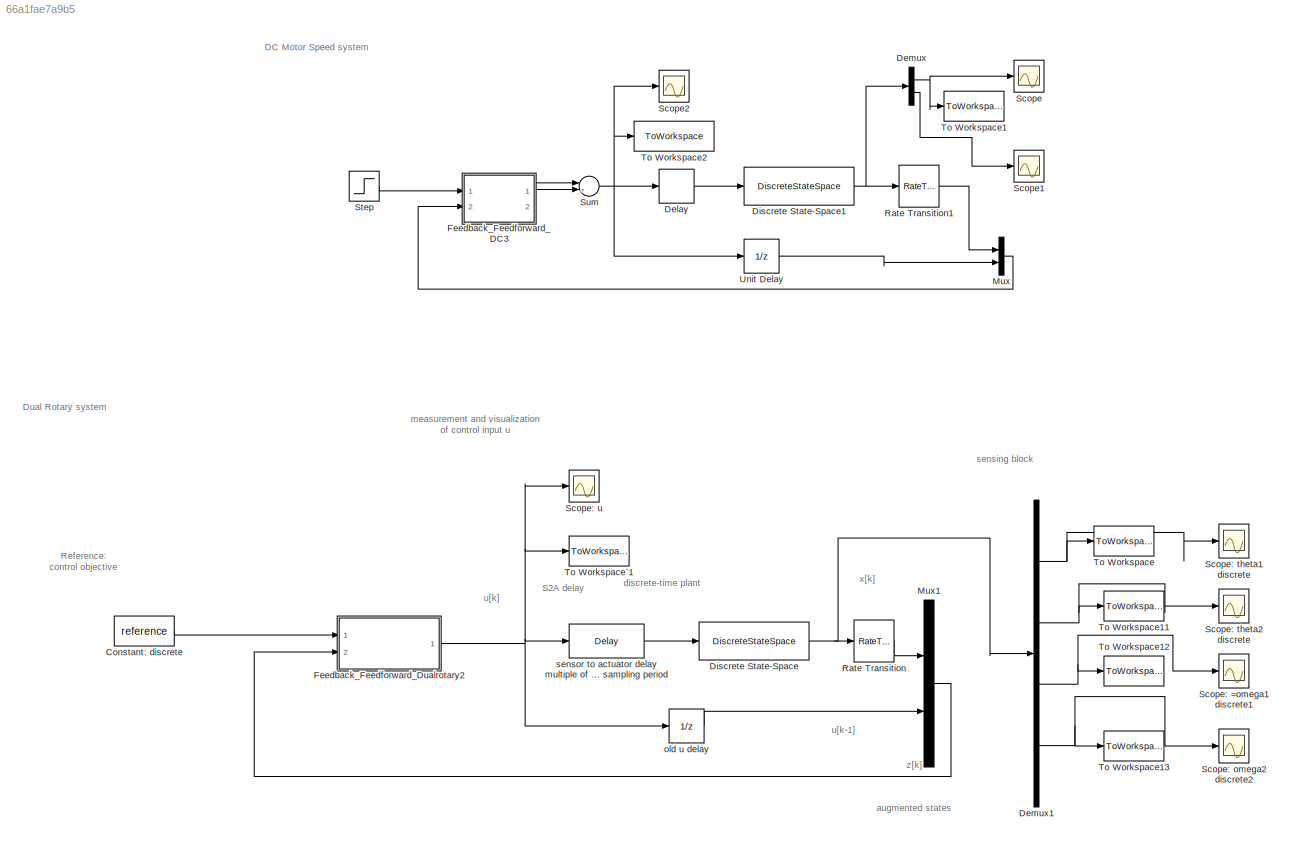
MODEL slx_66a1fae7a9b5
KIND model
CONFIG AbsTol = auto
CONFIG EnableMultiTasking = off
CONFIG FixedStep = 0.0001
CONFIG MaxStep = auto
CONFIG MinStep = auto
CONFIG RelTol = 1e-3
CONFIG SampleTimeConstraint = Unconstrained
CONFIG SolverName = FixedStepAuto
CONFIG StartTime = 0.0
CONFIG StopTime = 5
BLOCK [Constant] Constant: discrete
  Commented = on
  OutDataTypeStr = single
  SampleTime = hc
  Value = reference
BLOCK [Delay] Delay
  DelayLength = delay_count_dcmotor
  InputPortMap = u0
  Ports = [1, 1]
  SampleTime = Tp_DC
BLOCK [Demux] Demux
  Outputs = 2
  Ports = [1, 2]
BLOCK [Demux] Demux1
  Commented = on
  Ports = [1, 4]
BLOCK [DiscreteStateSpace] Discrete State-Space
  A = Ad_plant
  B = Bd_plant
  C = Cd_plant
  Commented = on
  D = Dd_plant
  SampleTime = hp
BLOCK [DiscreteStateSpace] Discrete State-Space1
  A = A_dp
  B = B_dp
  C = C_dp
  D = D_dp
  SampleTime = Tp_DC
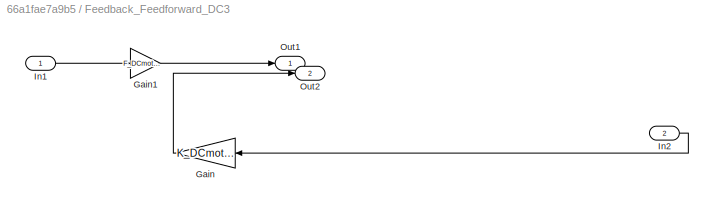
BLOCK [SubSystem] Feedback_Feedforward_DC3
  Ports = [2, 2]
  RequestExecContextInheritance = off
BLOCK [Gain] Feedback_Feedforward_DC3/Gain
  Gain = K_DCmotor
  Multiplication = Matrix(K*u) (u vector)
  NameLocation = top
BLOCK [Gain] Feedback_Feedforward_DC3/Gain1
  Gain = F_DCmotor
BLOCK [Inport] Feedback_Feedforward_DC3/In1
BLOCK [Inport] Feedback_Feedforward_DC3/In2
  Port = 2
BLOCK [Outport] Feedback_Feedforward_DC3/Out1
  VectorParamsAs1DForOutWhenUnconnected = off
BLOCK [Outport] Feedback_Feedforward_DC3/Out2
  Port = 2
  VectorParamsAs1DForOutWhenUnconnected = off
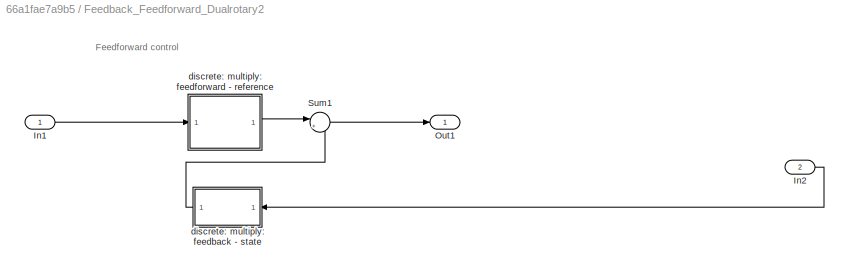
BLOCK [SubSystem] Feedback_Feedforward_Dualrotary2
  Commented = on
  Ports = [2, 1]
  RequestExecContextInheritance = off
BLOCK [Inport] Feedback_Feedforward_Dualrotary2/In1
BLOCK [Inport] Feedback_Feedforward_Dualrotary2/In2
  Port = 2
BLOCK [Outport] Feedback_Feedforward_Dualrotary2/Out1
  VectorParamsAs1DForOutWhenUnconnected = off
BLOCK [Sum] Feedback_Feedforward_Dualrotary2/Sum1
  Inputs = |++
  Ports = [2, 1]
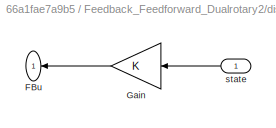
BLOCK [SubSystem] Feedback_Feedforward_Dualrotary2/discrete: multiply: feedback - state
  Ports = [1, 1]
  RequestExecContextInheritance = off
BLOCK [Outport] Feedback_Feedforward_Dualrotary2/discrete: multiply: feedback - state/FBu
  InitialOutput = [0]
  NameLocation = top
  OutDataTypeStr = single
  SampleTime = hc
  VectorParamsAs1DForOutWhenUnconnected = off
BLOCK [Gain] Feedback_Feedforward_Dualrotary2/discrete: multiply: feedback - state/Gain
  Gain = K
  Multiplication = Matrix(K*u) (u vector)
  NameLocation = top
  OutDataTypeStr = single
BLOCK [Inport] Feedback_Feedforward_Dualrotary2/discrete: multiply: feedback - state/state
  NameLocation = top
  OutDataTypeStr = single
  SampleTime = hc
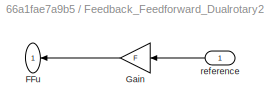
BLOCK [SubSystem] Feedback_Feedforward_Dualrotary2/discrete: multiply: feedforward - reference
  NameLocation = top
  Ports = [1, 1]
  RequestExecContextInheritance = off
BLOCK [Outport] Feedback_Feedforward_Dualrotary2/discrete: multiply: feedforward - reference/FFu
  InitialOutput = [0]
  NameLocation = top
  OutDataTypeStr = single
  SampleTime = hc
  VectorParamsAs1DForOutWhenUnconnected = off
BLOCK [Gain] Feedback_Feedforward_Dualrotary2/discrete: multiply: feedforward - reference/Gain
  Gain = F
  NameLocation = top
  OutDataTypeStr = single
BLOCK [Inport] Feedback_Feedforward_Dualrotary2/discrete: multiply: feedforward - reference/reference
  NameLocation = top
  OutDataTypeStr = single
  SampleTime = hc
BLOCK [Mux] Mux
  DisplayOption = bar
  Inputs = 2
  Ports = [2, 1]
BLOCK [Mux] Mux1
  Commented = on
  DisplayOption = bar
  Inputs = 2
  Ports = [2, 1]
BLOCK [RateTransition] Rate Transition
  Commented = on
  Deterministic = off
  OutPortSampleTime = hc
BLOCK [RateTransition] Rate Transition1
  OutPortSampleTime = Ts_DC
BLOCK [Scope] Scope
  Floating = off
  NumInputPorts = 1
  Ports = [1]
  ScopeSpecificationString = Simulink.scopes.TimeScopeBlockCfg('CurrentConfiguration', extmgr.ConfigurationSet(extmgr.Configuration('Core','General UI',true),extmgr.Configuration('Core','Source UI',true),extmgr.Configuration('Sources','WiredSimulink',true,'DataLoggingVariableName','ScopeData1'),extmgr.Configuration('Visuals','Time Domain',true,'SerializedDisplays',{struct('MinYLimReal','-0.1256','MaxYLimReal','1.13036','YLabe...<+1403ch>
BLOCK [Scope] Scope1
  Floating = off
  NumInputPorts = 1
  Ports = [1]
  ScopeSpecificationString = Simulink.scopes.TimeScopeBlockCfg('CurrentConfiguration', extmgr.ConfigurationSet(extmgr.Configuration('Core','General UI',true),extmgr.Configuration('Core','Source UI',true),extmgr.Configuration('Sources','WiredSimulink',true,'DataLoggingVariableName','ScopeData2'),extmgr.Configuration('Visuals','Time Domain',true,'SerializedDisplays',{struct('MinYLimReal','-1.24815','MaxYLimReal','11.23335','YLa...<+1370ch>
BLOCK [Scope] Scope2
  Floating = off
  NumInputPorts = 1
  Ports = [1]
  ScopeSpecificationString = Simulink.scopes.TimeScopeBlockCfg('CurrentConfiguration', extmgr.ConfigurationSet(extmgr.Configuration('Core','General UI',true),extmgr.Configuration('Core','Source UI',true),extmgr.Configuration('Sources','WiredSimulink',true,'DataLoggingVariableName','ScopeData3'),extmgr.Configuration('Visuals','Time Domain',true,'SerializedDisplays',{struct('MinYLimReal','-1.17312','MaxYLimReal','13.11865','YLa...<+1366ch>
BLOCK [Scope] Scope: =omega1 discrete1
  Commented = on
  Floating = off
  NumInputPorts = 1
  Ports = [1]
  ScopeSpecificationString = Simulink.scopes.TimeScopeBlockCfg('CurrentConfiguration', extmgr.ConfigurationSet(extmgr.Configuration('Core','General UI',true),extmgr.Configuration('Core','Source UI',true),extmgr.Configuration('Sources','WiredSimulink',true,'DataLoggingSaveFormat','Array','DataLoggingDecimation','1','DataLoggingVariableName','ScopeData4'),extmgr.Configuration('Visuals','Time Domain',true,'SerializedDisplays',{s...<+1510ch>
BLOCK [Scope] Scope: omega2 discrete2
  Commented = on
  Floating = off
  NumInputPorts = 1
  Ports = [1]
  ScopeSpecificationString = Simulink.scopes.TimeScopeBlockCfg('CurrentConfiguration', extmgr.ConfigurationSet(extmgr.Configuration('Core','General UI',true),extmgr.Configuration('Core','Source UI',true),extmgr.Configuration('Sources','WiredSimulink',true,'DataLoggingSaveFormat','Array','DataLoggingDecimation','1','DataLoggingVariableName','ScopeData5'),extmgr.Configuration('Visuals','Time Domain',true,'SerializedDisplays',{s...<+1506ch>
BLOCK [Scope] Scope: theta1 discrete
  Commented = on
  Floating = off
  NumInputPorts = 1
  Ports = [1]
  ScopeSpecificationString = Simulink.scopes.TimeScopeBlockCfg('CurrentConfiguration', extmgr.ConfigurationSet(extmgr.Configuration('Core','General UI',true),extmgr.Configuration('Core','Source UI',true),extmgr.Configuration('Sources','WiredSimulink',true,'DataLoggingSaveFormat','Array','DataLoggingDecimation','1','DataLoggingVariableName','ScopeData6'),extmgr.Configuration('Visuals','Time Domain',true,'SerializedDisplays',{s...<+1500ch>
BLOCK [Scope] Scope: theta2 discrete
  Commented = on
  Floating = off
  NumInputPorts = 1
  Ports = [1]
  ScopeSpecificationString = Simulink.scopes.TimeScopeBlockCfg('CurrentConfiguration', extmgr.ConfigurationSet(extmgr.Configuration('Core','General UI',true),extmgr.Configuration('Core','Source UI',true),extmgr.Configuration('Sources','WiredSimulink',true,'DataLoggingSaveFormat','Array','DataLoggingDecimation','1','DataLoggingVariableName','ScopeData7'),extmgr.Configuration('Visuals','Time Domain',true,'SerializedDisplays',{s...<+1488ch>
BLOCK [Scope] Scope: u
  Commented = on
  Floating = off
  NumInputPorts = 1
  Ports = [1]
  ScopeSpecificationString = Simulink.scopes.TimeScopeBlockCfg('CurrentConfiguration', extmgr.ConfigurationSet(extmgr.Configuration('Core','General UI',true),extmgr.Configuration('Core','Source UI',true),extmgr.Configuration('Sources','WiredSimulink',true),extmgr.Configuration('Visuals','Time Domain',true,'SerializedDisplays',{struct('MinYLimReal','-1.1173','MaxYLimReal','2.92312','YLabelReal','','MinYLimMag','0.00000','MaxYL...<+1395ch>
BLOCK [Step] Step
  SampleTime = Ts_DC
  Time = 0
BLOCK [Sum] Sum
  Inputs = |++
  Ports = [2, 1]
BLOCK [ToWorkspace] To Workspace
  Commented = on
  FixptAsFi = on
  MaxDataPoints = inf
  Ports = [1]
  SampleTime = hc
  SaveFormat = Timeseries
  VariableName = theta1
BLOCK [ToWorkspace] To Workspace1
  FixptAsFi = on
  MaxDataPoints = inf
  Ports = [1]
  SampleTime = Tp_DC
  SaveFormat = Timeseries
  VariableName = Theta_dot
BLOCK [ToWorkspace] To Workspace11
  Commented = on
  FixptAsFi = on
  MaxDataPoints = inf
  Ports = [1]
  SampleTime = hc
  SaveFormat = Timeseries
  VariableName = theta2
BLOCK [ToWorkspace] To Workspace12
  Commented = on
  FixptAsFi = on
  MaxDataPoints = inf
  Ports = [1]
  SampleTime = hc
  SaveFormat = Timeseries
  VariableName = omega1
BLOCK [ToWorkspace] To Workspace13
  Commented = on
  FixptAsFi = on
  MaxDataPoints = inf
  Ports = [1]
  SampleTime = hc
  SaveFormat = Timeseries
  VariableName = omega2
BLOCK [ToWorkspace] To Workspace2
  FixptAsFi = on
  MaxDataPoints = inf
  Ports = [1]
  SampleTime = Ts_DC
  SaveFormat = Timeseries
  VariableName = DC_motor_input
BLOCK [ToWorkspace] To Workspace`1
  Commented = on
  FixptAsFi = on
  MaxDataPoints = inf
  Ports = [1]
  SampleTime = hc
  SaveFormat = Timeseries
  VariableName = u
BLOCK [UnitDelay] Unit Delay
  HasFrameUpgradeWarning = on
  SampleTime = Ts_DC
BLOCK [UnitDelay] old u delay
  Commented = on
  HasFrameUpgradeWarning = on
  SampleTime = hc
BLOCK [Delay] sensor to actuator delay multiple of plant sampling period
  Commented = on
  DelayLength = delay_count
  InputPortMap = u0
  Ports = [1, 1]
  SampleTime = hp
ANNOTATION (root): DC Motor Speed system
ANNOTATION (root): Dual Rotary system
ANNOTATION (root): Reference: control objective
ANNOTATION (root): S2A delay
ANNOTATION (root): augmented states
ANNOTATION (root): discrete-time plant
ANNOTATION (root): measurement and visualization of control input u
ANNOTATION (root): sensing block
ANNOTATION (root): u[k-1]
ANNOTATION (root): u[k]
ANNOTATION (root): x[k]
ANNOTATION (root): z[k]
ANNOTATION Feedback_Feedforward_Dualrotary2: Feedforward control
LINE Constant: discrete:1 -> Feedback_Feedforward_Dualrotary2:1
LINE Delay:1 -> Discrete State-Space1:1
NET Demux1:1 -> Scope: theta1 discrete:1, To Workspace:1
NET Demux1:2 -> Scope: theta2 discrete:1, To Workspace11:1
NET Demux1:3 -> Scope: =omega1 discrete1:1, To Workspace12:1
NET Demux1:4 -> Scope: omega2 discrete2:1, To Workspace13:1
NET Demux:1 -> Scope:1, To Workspace1:1
LINE Demux:2 -> Scope1:1
NET Discrete State-Space1:1 -> Demux:1, Rate Transition1:1
NET Discrete State-Space:1 -> Demux1:1, Rate Transition:1
LINE Feedback_Feedforward_DC3/Gain1:1 -> Feedback_Feedforward_DC3/Out1:1
LINE Feedback_Feedforward_DC3/Gain:1 -> Feedback_Feedforward_DC3/Out2:1
LINE Feedback_Feedforward_DC3/In1:1 -> Feedback_Feedforward_DC3/Gain1:1
LINE Feedback_Feedforward_DC3/In2:1 -> Feedback_Feedforward_DC3/Gain:1
LINE Feedback_Feedforward_DC3:1 -> Sum:1
LINE Feedback_Feedforward_DC3:2 -> Sum:2
LINE Feedback_Feedforward_Dualrotary2/In1:1 -> Feedback_Feedforward_Dualrotary2/discrete: multiply: feedforward - reference:1
LINE Feedback_Feedforward_Dualrotary2/In2:1 -> Feedback_Feedforward_Dualrotary2/discrete: multiply: feedback - state:1
LINE Feedback_Feedforward_Dualrotary2/Sum1:1 -> Feedback_Feedforward_Dualrotary2/Out1:1
LINE Feedback_Feedforward_Dualrotary2/discrete: multiply: feedback - state/Gain:1 -> Feedback_Feedforward_Dualrotary2/discrete: multiply: feedback - state/FBu:1
LINE Feedback_Feedforward_Dualrotary2/discrete: multiply: feedback - state/state:1 -> Feedback_Feedforward_Dualrotary2/discrete: multiply: feedback - state/Gain:1
LINE Feedback_Feedforward_Dualrotary2/discrete: multiply: feedback - state:1 -> Feedback_Feedforward_Dualrotary2/Sum1:2
LINE Feedback_Feedforward_Dualrotary2/discrete: multiply: feedforward - reference/Gain:1 -> Feedback_Feedforward_Dualrotary2/discrete: multiply: feedforward - reference/FFu:1
LINE Feedback_Feedforward_Dualrotary2/discrete: multiply: feedforward - reference/reference:1 -> Feedback_Feedforward_Dualrotary2/discrete: multiply: feedforward - reference/Gain:1
LINE Feedback_Feedforward_Dualrotary2/discrete: multiply: feedforward - reference:1 -> Feedback_Feedforward_Dualrotary2/Sum1:1
NET Feedback_Feedforward_Dualrotary2:1 -> Scope: u:1, To Workspace`1:1, old u delay:1, sensor to actuator delay multiple of plant sampling period:1
LINE Mux1:1 -> Feedback_Feedforward_Dualrotary2:2
LINE Mux:1 -> Feedback_Feedforward_DC3:2
LINE Rate Transition1:1 -> Mux:1
LINE Rate Transition:1 -> Mux1:1
LINE Step:1 -> Feedback_Feedforward_DC3:1
NET Sum:1 -> Delay:1, Scope2:1, To Workspace2:1, Unit Delay:1
LINE Unit Delay:1 -> Mux:2
LINE old u delay:1 -> Mux1:2
LINE sensor to actuator delay multiple of plant sampling period:1 -> Discrete State-Space:1
note: NET lines group one-source signal fan-out (src -> all destinations, sorted); 1:1 wires keep LINE
